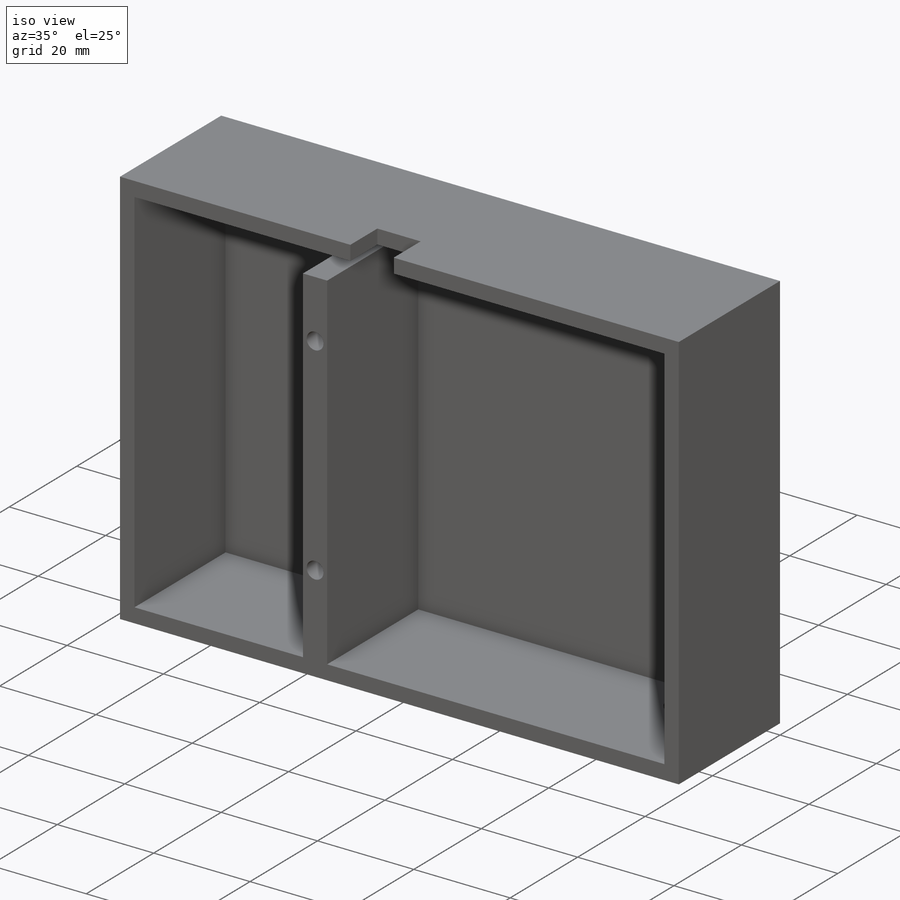
[diagram: iso view]
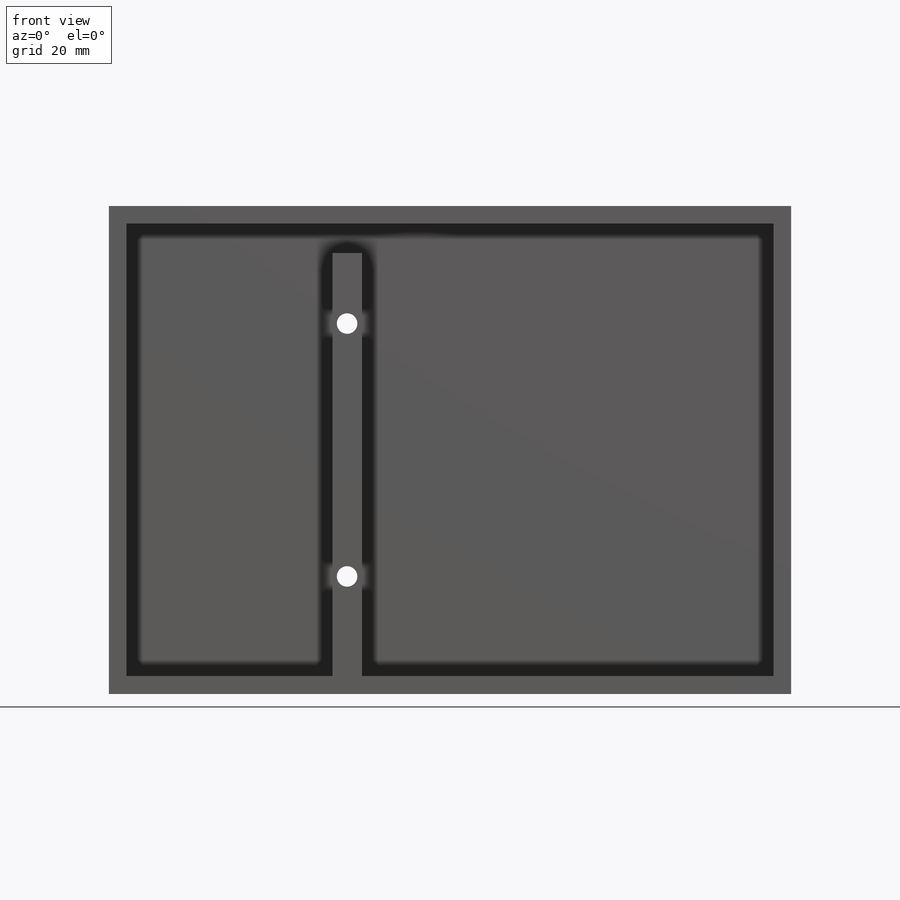
[diagram: front view]
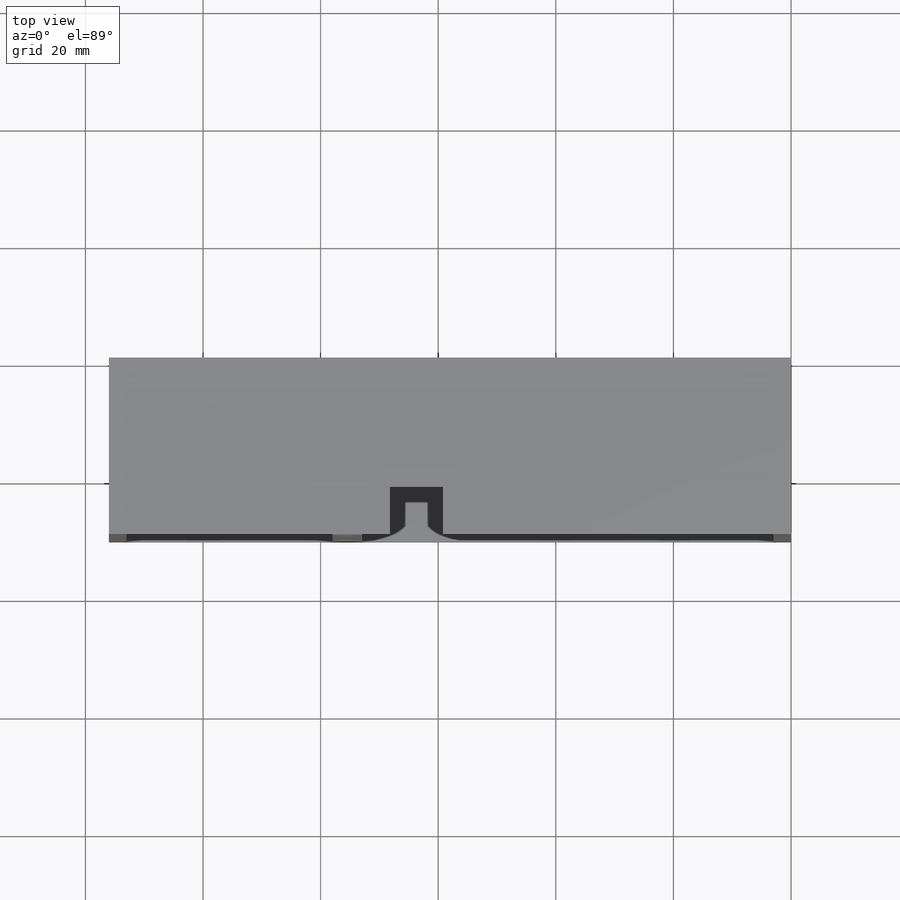
[diagram: top view]
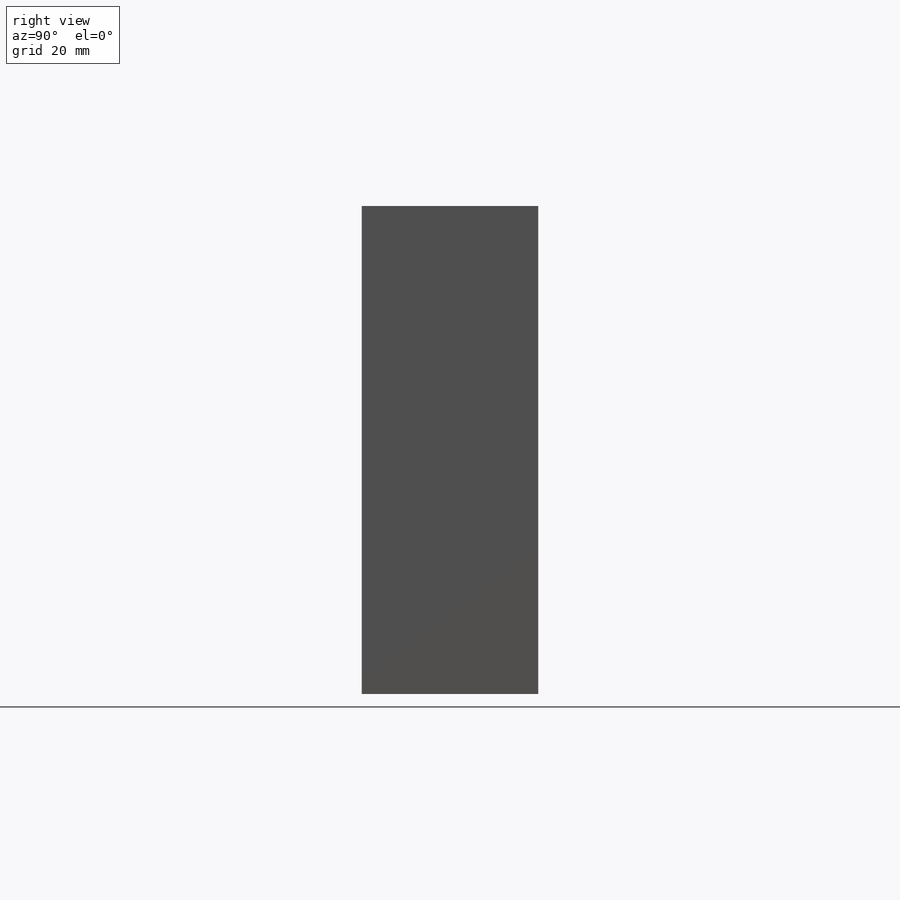
[diagram: right view]
SOLIDWORKS PART (.sldprt)
format: sldprt  version: not decoded by parser v0  size: 233,984 bytes
history: native  units: mm
features: sketch x6, cut_extrude x4, extrude x2, material x1 (+11 scaffold rows collapsed)
feature tree (24):
  scaffold x11  (default folders/planes/origin — collapsed)
  material  "Material <not specified>"
  sketch  "Sketch1"  dims[D1=77.0mm D2=70.0mm D3=35.0mm D4=77.0mm D5=5.0mm D6=3.0mm D7=3.0mm D8=3.0mm D9=3.0mm D10=~4.242641mm]
  extrude  "Boss-Extrude1"  Depth=30mm
  sketch  "Sketch2"
  extrude  "Boss-Extrude2"  Depth=3mm
  sketch  "Sketch3"  dims[D1=5.0mm D2=0.0mm]
  cut_extrude  "Cut-Extrude1"  Depth=5mm
  sketch  "Sketch5"  dims[D1=10.0mm D2=8.0mm D3=12.5mm]
  cut_extrude  "Cut-Extrude3"  Depth=10mm
  sketch  "Sketch6"  dims[c1.D4=3.5mm c1.D5=3.5mm c1.D1=20.0mm c1.D2=20.0mm c1.D3=~22.344552mm c2.D3=90.0deg c2.D2=20.0mm c3.D3=75.5mm]
  cut_extrude  "Cut-Extrude4"  Depth=30mm
  sketch  "Sketch7"  dims[D1=9.0mm]
  cut_extrude  "Cut-Extrude5"  Depth=10mm
decode coverage: 11 of 12 modeling features carry decoded parameters
note: ~ marks probable driven/reference dimensions
note: suppression state not decoded; provenance and decode notes live in map.json
